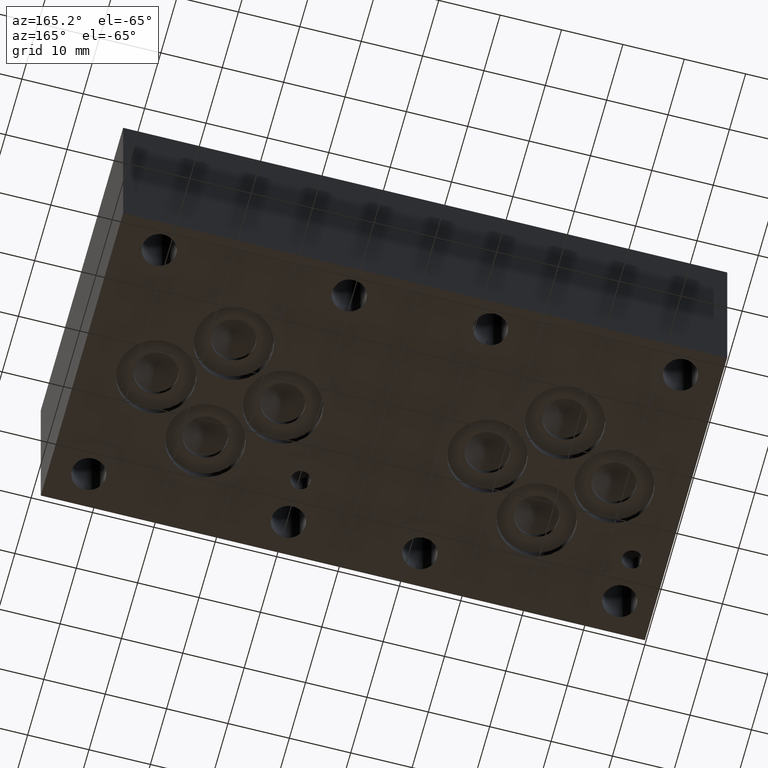
[diagram: clean part render]
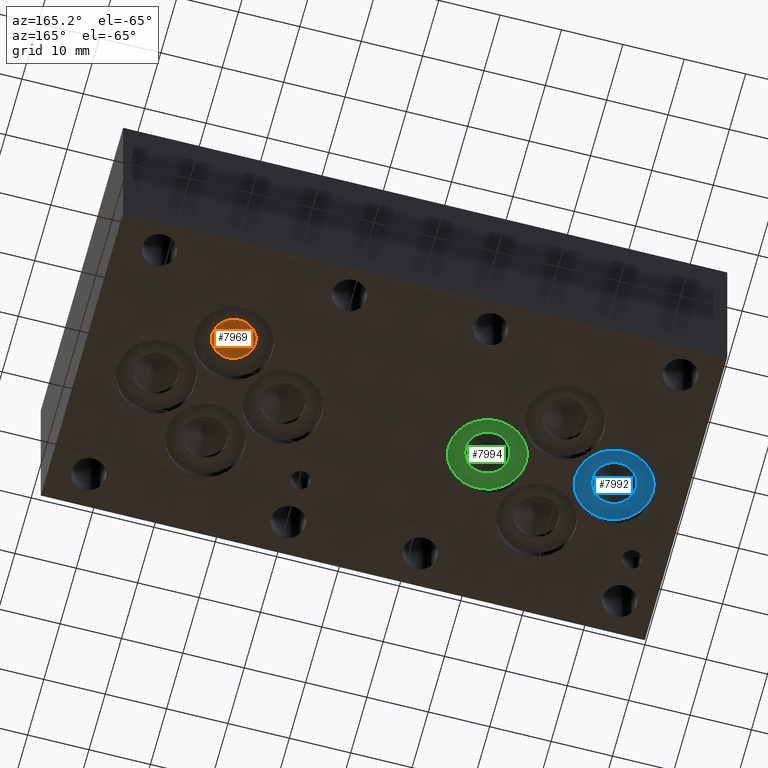
[diagram: same view with three faces highlighted in distinct colors, each labeled with its STEP entity id]
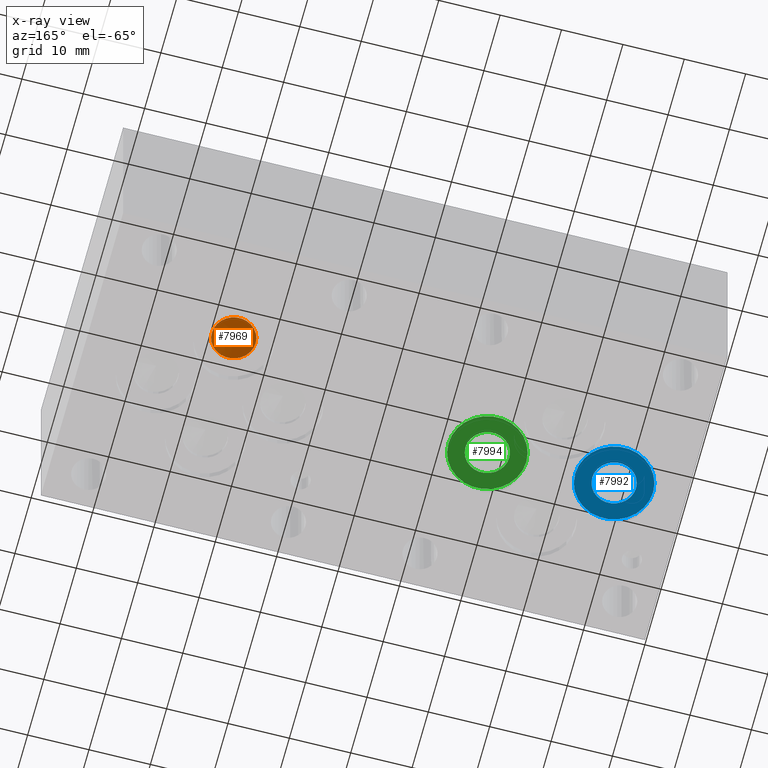
[diagram: x-ray of the same camera — body ghosted, the three highlighted faces saturated]
A machine part, auxiliary view with three faces highlighted in distinct colors.
The next image is the same camera in x-ray (body ghosted, the three faces saturated) — at least one of them is partly hidden behind the body in this view.
Their STEP definitions:

[orange] entity #7969 — the highlighted conical surface has half-angle 60 deg.
#55=CIRCLE('',#8301,3.5687);
#137=CONICAL_SURFACE('',#8300,1.78435,1.0471975511966);
#892=FACE_OUTER_BOUND('',#1339,.T.);
#1339=EDGE_LOOP('',(#6717,#6718,#6719));
#2182=LINE('',#13273,#2975);
#2975=VECTOR('',#9655,1.78435);
#3667=VERTEX_POINT('',#13270);
#3668=VERTEX_POINT('',#13272);
#4708=EDGE_CURVE('',#3667,#3667,#55,.T.);
#4709=EDGE_CURVE('',#3667,#3668,#2182,.T.);
#6717=ORIENTED_EDGE('',*,*,#4708,.T.);
#6718=ORIENTED_EDGE('',*,*,#4709,.T.);
#6719=ORIENTED_EDGE('',*,*,#4709,.F.);
#7969=ADVANCED_FACE('',(#892),#137,.F.);
#8300=AXIS2_PLACEMENT_3D('',#13269,#9651,#9652);
#8301=AXIS2_PLACEMENT_3D('',#13271,#9653,#9654);
#9651=DIRECTION('center_axis',(0.,0.,-1.));
#9652=DIRECTION('ref_axis',(1.,0.,0.));
#9653=DIRECTION('center_axis',(0.,0.,-1.));
#9654=DIRECTION('ref_axis',(1.,0.,0.));
#9655=DIRECTION('',(0.866025403784439,-1.06057523872491E-16,0.5));
#13269=CARTESIAN_POINT('Origin',(75.7936,33.3248,3.09058495282851));
#13270=CARTESIAN_POINT('',(72.2249,33.3248,2.06039));
#13271=CARTESIAN_POINT('Origin',(75.7936,33.3248,2.06039));
#13272=CARTESIAN_POINT('',(75.7936,33.3248,4.12077990565702));
#13273=CARTESIAN_POINT('',(74.00925,33.3248,3.09058495282851));

[blue] entity #7992 — the highlighted planar face has unit normal (0, 0, -1).
#62=CIRCLE('',#8315,3.5687);
#78=CIRCLE('',#8346,6.35);
#195=FACE_BOUND('',#1366,.T.);
#915=FACE_OUTER_BOUND('',#1365,.T.);
#1365=EDGE_LOOP('',(#6795));
#1366=EDGE_LOOP('',(#6796));
#3678=VERTEX_POINT('',#13302);
#3698=VERTEX_POINT('',#13365);
#4722=EDGE_CURVE('',#3678,#3678,#62,.T.);
#4751=EDGE_CURVE('',#3698,#3698,#78,.T.);
#6795=ORIENTED_EDGE('',*,*,#4751,.T.);
#6796=ORIENTED_EDGE('',*,*,#4722,.T.);
#7293=PLANE('',#8347);
#7992=ADVANCED_FACE('',(#915,#195),#7293,.T.);
#8315=AXIS2_PLACEMENT_3D('',#13303,#9688,#9689);
#8346=AXIS2_PLACEMENT_3D('',#13367,#9763,#9764);
#8347=AXIS2_PLACEMENT_3D('',#13368,#9765,#9766);
#9688=DIRECTION('center_axis',(0.,0.,1.));
#9689=DIRECTION('ref_axis',(1.,0.,0.));
#9763=DIRECTION('center_axis',(0.,0.,-1.));
#9764=DIRECTION('ref_axis',(1.,0.,0.));
#9765=DIRECTION('center_axis',(0.,0.,-1.));
#9766=DIRECTION('ref_axis',(1.,0.,0.));
#13302=CARTESIAN_POINT('',(7.9375,24.5872,1.3208));
#13303=CARTESIAN_POINT('Origin',(11.5062,24.5872,1.3208));
#13365=CARTESIAN_POINT('',(5.1562,24.5872,1.3208));
#13367=CARTESIAN_POINT('Origin',(11.5062,24.5872,1.3208));
#13368=CARTESIAN_POINT('Origin',(11.5062,24.5872,1.3208));

[green] entity #7994 — the highlighted planar face has unit normal (0, 0, -1).
#64=CIRCLE('',#8319,3.5687);
#80=CIRCLE('',#8350,6.35);
#196=FACE_BOUND('',#1369,.T.);
#917=FACE_OUTER_BOUND('',#1368,.T.);
#1368=EDGE_LOOP('',(#6801));
#1369=EDGE_LOOP('',(#6802));
#3681=VERTEX_POINT('',#13311);
#3700=VERTEX_POINT('',#13372);
#4726=EDGE_CURVE('',#3681,#3681,#64,.T.);
#4754=EDGE_CURVE('',#3700,#3700,#80,.T.);
#6801=ORIENTED_EDGE('',*,*,#4754,.T.);
#6802=ORIENTED_EDGE('',*,*,#4726,.T.);
#7294=PLANE('',#8351);
#7994=ADVANCED_FACE('',(#917,#196),#7294,.T.);
#8319=AXIS2_PLACEMENT_3D('',#13312,#9698,#9699);
#8350=AXIS2_PLACEMENT_3D('',#13374,#9772,#9773);
#8351=AXIS2_PLACEMENT_3D('',#13375,#9774,#9775);
#9698=DIRECTION('center_axis',(0.,0.,1.));
#9699=DIRECTION('ref_axis',(1.,0.,0.));
#9772=DIRECTION('center_axis',(0.,0.,-1.));
#9773=DIRECTION('ref_axis',(1.,0.,0.));
#9774=DIRECTION('center_axis',(0.,0.,-1.));
#9775=DIRECTION('ref_axis',(1.,0.,0.));
#13311=CARTESIAN_POINT('',(28.5877,24.5872,1.3208));
#13312=CARTESIAN_POINT('Origin',(32.1564,24.5872,1.3208));
#13372=CARTESIAN_POINT('',(25.8064,24.5872,1.3208));
#13374=CARTESIAN_POINT('Origin',(32.1564,24.5872,1.3208));
#13375=CARTESIAN_POINT('Origin',(32.1564,24.5872,1.3208));